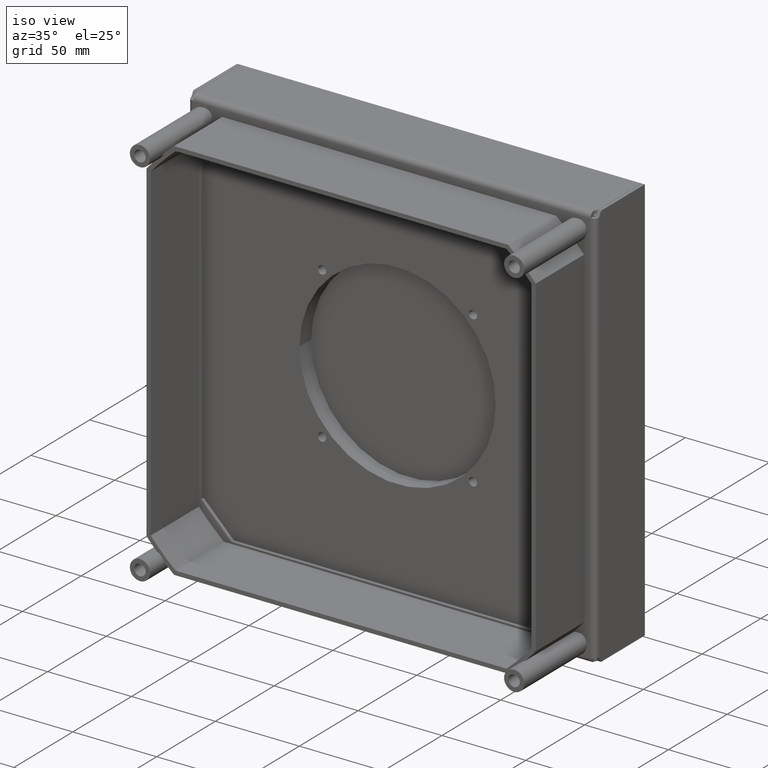
[diagram: clean part render]
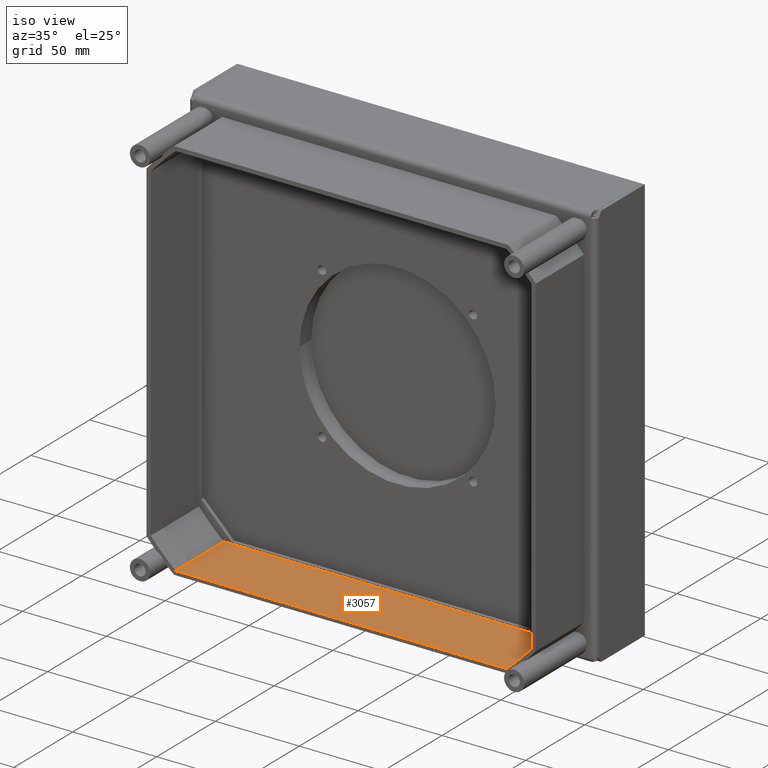
[diagram: same view with one face highlighted and labeled with its STEP entity id]
A machine part, iso view. The second image highlights one B-rep face of the part: STEP entity #3057.
In plain terms, the highlighted planar face has unit normal (0, 0, 1).
Its self-contained STEP definition (entity closure, byte-faithful):
#2762=DIRECTION('',(1.E0,0.E0,0.E0));
#2763=VECTOR('',#2762,1.972916622668E2);
#2764=CARTESIAN_POINT('',(-9.864583113340E1,0.E0,-1.13E2));
#2765=LINE('',#2764,#2763);
#2766=DIRECTION('',(0.E0,-1.E0,0.E0));
#2767=VECTOR('',#2766,4.1E1);
#2768=CARTESIAN_POINT('',(9.864583113340E1,0.E0,-1.13E2));
#2769=LINE('',#2768,#2767);
#2770=DIRECTION('',(-1.E0,0.E0,0.E0));
#2771=VECTOR('',#2770,1.972916622668E2);
#2772=CARTESIAN_POINT('',(9.864583113340E1,-4.1E1,-1.13E2));
#2773=LINE('',#2772,#2771);
#2774=DIRECTION('',(0.E0,-1.E0,0.E0));
#2775=VECTOR('',#2774,4.1E1);
#2776=CARTESIAN_POINT('',(-9.864583113340E1,0.E0,-1.13E2));
#2777=LINE('',#2776,#2775);
#2910=CARTESIAN_POINT('',(-9.864583113340E1,0.E0,-1.13E2));
#2911=CARTESIAN_POINT('',(9.864583113340E1,0.E0,-1.13E2));
#2912=VERTEX_POINT('',#2910);
#2913=VERTEX_POINT('',#2911);
#2914=CARTESIAN_POINT('',(9.864583113340E1,-4.1E1,-1.13E2));
#2915=CARTESIAN_POINT('',(-9.864583113340E1,-4.1E1,-1.13E2));
#2916=VERTEX_POINT('',#2914);
#2917=VERTEX_POINT('',#2915);
#3044=CARTESIAN_POINT('',(-9.864583113340E1,0.E0,-1.13E2));
#3045=DIRECTION('',(0.E0,0.E0,1.E0));
#3046=DIRECTION('',(1.E0,0.E0,0.E0));
#3047=AXIS2_PLACEMENT_3D('',#3044,#3045,#3046);
#3048=PLANE('',#3047);
#3049=ORIENTED_EDGE('',*,*,#2977,.T.);
#3051=ORIENTED_EDGE('',*,*,#3050,.T.);
#3052=ORIENTED_EDGE('',*,*,#3025,.T.);
#3054=ORIENTED_EDGE('',*,*,#3053,.F.);
#3055=EDGE_LOOP('',(#3049,#3051,#3052,#3054));
#3056=FACE_OUTER_BOUND('',#3055,.F.);
#2977=EDGE_CURVE('',#2912,#2913,#2765,.T.);
#3025=EDGE_CURVE('',#2916,#2917,#2773,.T.);
#3050=EDGE_CURVE('',#2913,#2916,#2769,.T.);
#3053=EDGE_CURVE('',#2912,#2917,#2777,.T.);
#3057=ADVANCED_FACE('',(#3056),#3048,.T.);